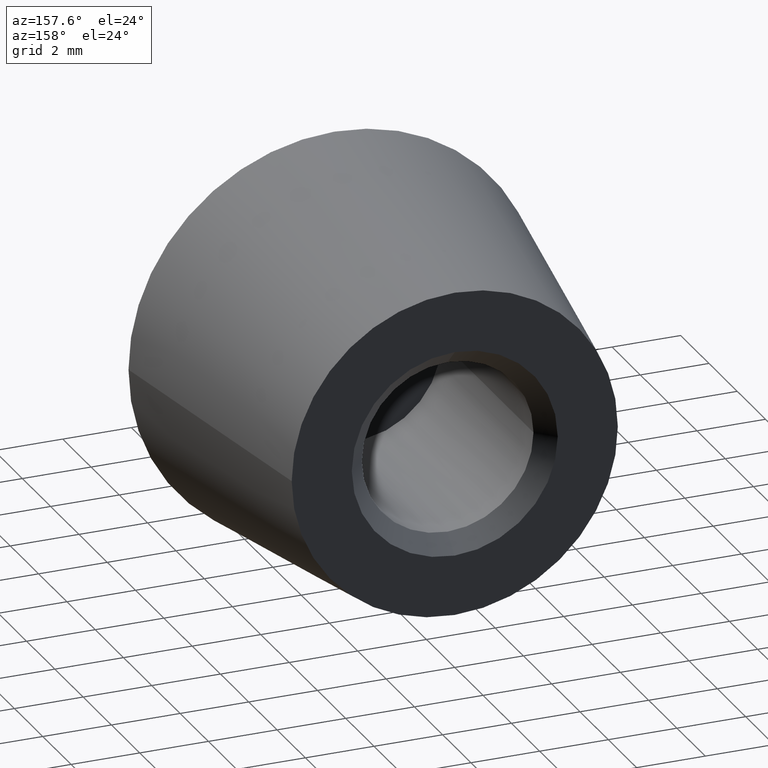
[diagram: clean part render]
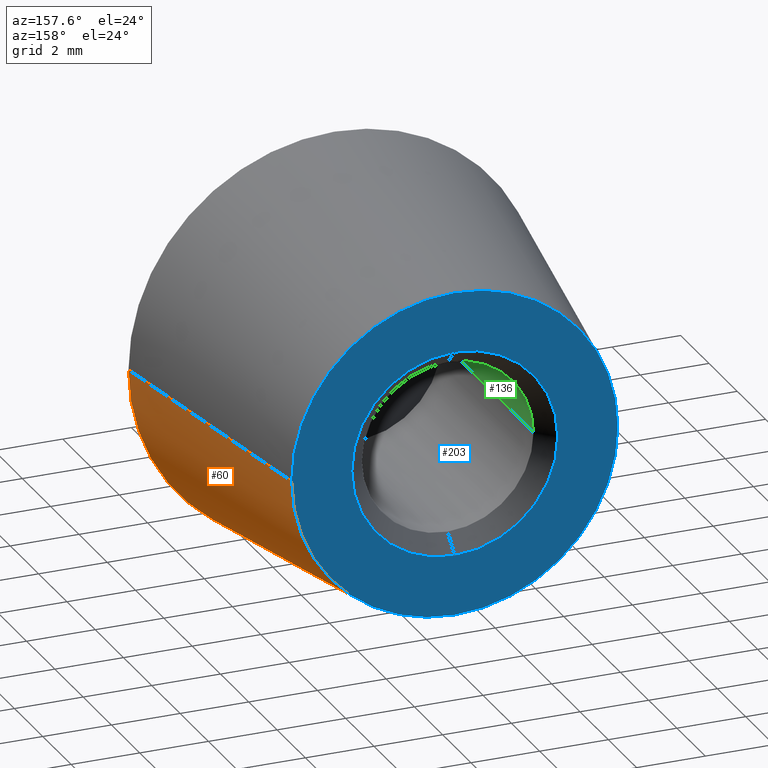
[diagram: same view with three faces highlighted in distinct colors, each labeled with its STEP entity id]
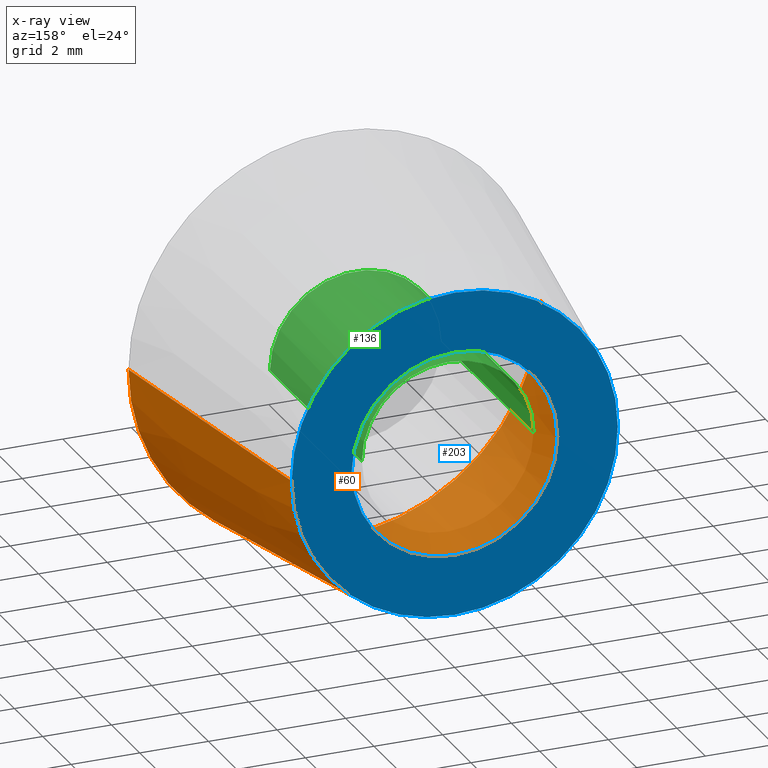
[diagram: x-ray of the same camera — body ghosted, the three highlighted faces saturated]
A machine part, auxiliary view with three faces highlighted in distinct colors.
The next image is the same camera in x-ray (body ghosted, the three faces saturated) — at least one of them is partly hidden behind the body in this view.
Their STEP definitions:

[orange] entity #60 — the highlighted conical surface has half-angle 8.366 deg.
#10 = DIRECTION ( 'NONE',  ( 3.491481338843133400E-015, -1.000000000000000000, -0.0000000000000000000 ) ) ;
#11 = AXIS2_PLACEMENT_3D ( 'NONE', #207, #10, #64 ) ;
#14 = VERTEX_POINT ( 'NONE', #219 ) ;
#26 = EDGE_CURVE ( 'NONE', #55, #56, #312, .T. ) ;
#28 = AXIS2_PLACEMENT_3D ( 'NONE', #180, #280, #37 ) ;
#32 = EDGE_CURVE ( 'NONE', #56, #14, #40, .T. ) ;
#36 = CARTESIAN_POINT ( 'NONE',  ( 2.967759138016635000E-014, -8.499999999999952000, 0.0000000000000000000 ) ) ;
#37 = DIRECTION ( 'NONE',  ( 1.000000000000000000, 3.469446951953631100E-015, 0.0000000000000000000 ) ) ;
#40 = CIRCLE ( 'NONE', #89, 5.999999999999970700 ) ;
#55 = VERTEX_POINT ( 'NONE', #173 ) ;
#56 = VERTEX_POINT ( 'NONE', #143 ) ;
#60 = ADVANCED_FACE ( 'NONE', ( #164 ), #160, .T. ) ;
#62 = ORIENTED_EDGE ( 'NONE', *, *, #32, .F. ) ;
#64 = DIRECTION ( 'NONE',  ( 1.000000000000000000, 3.491481338843132600E-015, 0.0000000000000000000 ) ) ;
#68 = DIRECTION ( 'NONE',  ( 0.1454939904948323600, -0.9893591353648530900, 0.0000000000000000000 ) ) ;
#82 = VECTOR ( 'NONE', #68, 1000.000000000000100 ) ;
#89 = AXIS2_PLACEMENT_3D ( 'NONE', #36, #251, #115 ) ;
#91 = CARTESIAN_POINT ( 'NONE',  ( 4.749999999999999100, 1.658453635950487700E-014, 0.0000000000000000000 ) ) ;
#115 = DIRECTION ( 'NONE',  ( 1.000000000000000000, 3.469446951953631100E-015, 0.0000000000000000000 ) ) ;
#119 = CARTESIAN_POINT ( 'NONE',  ( 6.000000000000000000, -8.499999999999930700, 0.0000000000000000000 ) ) ;
#124 = CARTESIAN_POINT ( 'NONE',  ( -5.999999999999941400, -8.499999999999973400, 7.347880794884083300E-016 ) ) ;
#129 = VECTOR ( 'NONE', #188, 1000.000000000000000 ) ;
#143 = CARTESIAN_POINT ( 'NONE',  ( -5.999999999999941400, -8.499999999999973400, 7.347880794884083300E-016 ) ) ;
#146 = EDGE_CURVE ( 'NONE', #55, #213, #232, .T. ) ;
#157 = LINE ( 'NONE', #119, #82 ) ;
#160 = CONICAL_SURFACE ( 'NONE', #28, 5.999999999999970700, 0.1460122577112729400 ) ;
#164 = FACE_OUTER_BOUND ( 'NONE', #287, .T. ) ;
#173 = CARTESIAN_POINT ( 'NONE',  ( -4.749999999999999100, -1.658453635950487700E-014, 6.582476545417005300E-016 ) ) ;
#180 = CARTESIAN_POINT ( 'NONE',  ( 2.967759138016635000E-014, -8.499999999999952000, 0.0000000000000000000 ) ) ;
#188 = DIRECTION ( 'NONE',  ( -0.1454939904948254800, -0.9893591353648540900, 1.781787497546676800E-017 ) ) ;
#197 = ORIENTED_EDGE ( 'NONE', *, *, #228, .T. ) ;
#207 = CARTESIAN_POINT ( 'NONE',  ( 0.0000000000000000000, 0.0000000000000000000, 0.0000000000000000000 ) ) ;
#213 = VERTEX_POINT ( 'NONE', #91 ) ;
#216 = ORIENTED_EDGE ( 'NONE', *, *, #146, .T. ) ;
#219 = CARTESIAN_POINT ( 'NONE',  ( 6.000000000000000000, -8.499999999999930700, 0.0000000000000000000 ) ) ;
#226 = ORIENTED_EDGE ( 'NONE', *, *, #26, .F. ) ;
#228 = EDGE_CURVE ( 'NONE', #213, #14, #157, .T. ) ;
#232 = CIRCLE ( 'NONE', #11, 4.749999999999999100 ) ;
#251 = DIRECTION ( 'NONE',  ( 3.491481338843133400E-015, -1.000000000000000000, -0.0000000000000000000 ) ) ;
#280 = DIRECTION ( 'NONE',  ( 3.491481338843133400E-015, -1.000000000000000000, -0.0000000000000000000 ) ) ;
#287 = EDGE_LOOP ( 'NONE', ( #226, #216, #197, #62 ) ) ;
#312 = LINE ( 'NONE', #124, #129 ) ;

[blue] entity #203 — the highlighted planar face has unit normal (-0, 1, 0).
#8 = DIRECTION ( 'NONE',  ( 0.0000000000000000000, 0.0000000000000000000, -1.000000000000000000 ) ) ;
#9 = FACE_BOUND ( 'NONE', #122, .T. ) ;
#10 = DIRECTION ( 'NONE',  ( 3.491481338843133400E-015, -1.000000000000000000, -0.0000000000000000000 ) ) ;
#11 = AXIS2_PLACEMENT_3D ( 'NONE', #207, #10, #64 ) ;
#12 = CARTESIAN_POINT ( 'NONE',  ( 2.895229960628836200E-029, -8.292268179752438600E-015, 0.0000000000000000000 ) ) ;
#29 = ORIENTED_EDGE ( 'NONE', *, *, #146, .F. ) ;
#39 = DIRECTION ( 'NONE',  ( 0.0000000000000000000, 0.0000000000000000000, -1.000000000000000000 ) ) ;
#46 = EDGE_CURVE ( 'NONE', #210, #274, #176, .T. ) ;
#50 = CIRCLE ( 'NONE', #66, 4.749999999999999100 ) ;
#55 = VERTEX_POINT ( 'NONE', #173 ) ;
#64 = DIRECTION ( 'NONE',  ( 1.000000000000000000, 3.491481338843132600E-015, 0.0000000000000000000 ) ) ;
#66 = AXIS2_PLACEMENT_3D ( 'NONE', #121, #259, #181 ) ;
#67 = DIRECTION ( 'NONE',  ( -1.000000000000000000, -3.491481338843133400E-015, 0.0000000000000000000 ) ) ;
#77 = CIRCLE ( 'NONE', #118, 3.000000000000000000 ) ;
#91 = CARTESIAN_POINT ( 'NONE',  ( 4.749999999999999100, 1.658453635950487700E-014, 0.0000000000000000000 ) ) ;
#117 = ORIENTED_EDGE ( 'NONE', *, *, #202, .T. ) ;
#118 = AXIS2_PLACEMENT_3D ( 'NONE', #167, #182, #39 ) ;
#121 = CARTESIAN_POINT ( 'NONE',  ( 0.0000000000000000000, 0.0000000000000000000, 0.0000000000000000000 ) ) ;
#122 = EDGE_LOOP ( 'NONE', ( #117, #269 ) ) ;
#133 = EDGE_CURVE ( 'NONE', #213, #55, #50, .T. ) ;
#141 = PLANE ( 'NONE',  #154 ) ;
#142 = EDGE_LOOP ( 'NONE', ( #218, #29 ) ) ;
#146 = EDGE_CURVE ( 'NONE', #55, #213, #232, .T. ) ;
#154 = AXIS2_PLACEMENT_3D ( 'NONE', #12, #208, #67 ) ;
#165 = CARTESIAN_POINT ( 'NONE',  ( 0.0000000000000000000, 0.0000000000000000000, 0.0000000000000000000 ) ) ;
#167 = CARTESIAN_POINT ( 'NONE',  ( 0.0000000000000000000, 0.0000000000000000000, 0.0000000000000000000 ) ) ;
#173 = CARTESIAN_POINT ( 'NONE',  ( -4.749999999999999100, -1.658453635950487700E-014, 6.582476545417005300E-016 ) ) ;
#176 = CIRCLE ( 'NONE', #311, 3.000000000000000000 ) ;
#181 = DIRECTION ( 'NONE',  ( 1.000000000000000000, 3.491481338843132600E-015, 0.0000000000000000000 ) ) ;
#182 = DIRECTION ( 'NONE',  ( -0.0000000000000000000, -1.000000000000000000, -0.0000000000000000000 ) ) ;
#199 = FACE_OUTER_BOUND ( 'NONE', #142, .T. ) ;
#202 = EDGE_CURVE ( 'NONE', #274, #210, #77, .T. ) ;
#203 = ADVANCED_FACE ( 'NONE', ( #9, #199 ), #141, .T. ) ;
#207 = CARTESIAN_POINT ( 'NONE',  ( 0.0000000000000000000, 0.0000000000000000000, 0.0000000000000000000 ) ) ;
#208 = DIRECTION ( 'NONE',  ( -3.491481338843133400E-015, 1.000000000000000000, 0.0000000000000000000 ) ) ;
#210 = VERTEX_POINT ( 'NONE', #256 ) ;
#213 = VERTEX_POINT ( 'NONE', #91 ) ;
#218 = ORIENTED_EDGE ( 'NONE', *, *, #133, .F. ) ;
#232 = CIRCLE ( 'NONE', #11, 4.749999999999999100 ) ;
#249 = CARTESIAN_POINT ( 'NONE',  ( 0.0000000000000000000, 1.084202172485504400E-016, 3.000000000000000000 ) ) ;
#256 = CARTESIAN_POINT ( 'NONE',  ( 3.673940397442059900E-016, 1.084202172485504400E-016, -3.000000000000000000 ) ) ;
#259 = DIRECTION ( 'NONE',  ( 3.491481338843133400E-015, -1.000000000000000000, -0.0000000000000000000 ) ) ;
#269 = ORIENTED_EDGE ( 'NONE', *, *, #46, .T. ) ;
#274 = VERTEX_POINT ( 'NONE', #249 ) ;
#304 = DIRECTION ( 'NONE',  ( -0.0000000000000000000, -1.000000000000000000, -0.0000000000000000000 ) ) ;
#311 = AXIS2_PLACEMENT_3D ( 'NONE', #165, #304, #8 ) ;

[green] entity #136 — the highlighted cylindrical surface (partial cylindrical patch) has radius 2.5 mm, axis along (-0, 1, -0).
#4 = CARTESIAN_POINT ( 'NONE',  ( 0.0000000000000000000, -0.5000000000000064400, 0.0000000000000000000 ) ) ;
#13 = DIRECTION ( 'NONE',  ( -1.000000000000000000, -3.469446951953613400E-015, 0.0000000000000000000 ) ) ;
#18 = CARTESIAN_POINT ( 'NONE',  ( 0.0000000000000000000, -0.5000000000000064400, 0.0000000000000000000 ) ) ;
#23 = VERTEX_POINT ( 'NONE', #74 ) ;
#34 = DIRECTION ( 'NONE',  ( 0.0000000000000000000, 0.0000000000000000000, 1.000000000000000000 ) ) ;
#35 = LINE ( 'NONE', #308, #248 ) ;
#43 = CARTESIAN_POINT ( 'NONE',  ( 2.500000000000000400, -0.5000000000000064400, 3.061616997868382600E-016 ) ) ;
#44 = ORIENTED_EDGE ( 'NONE', *, *, #209, .T. ) ;
#59 = CARTESIAN_POINT ( 'NONE',  ( 2.500000000000049300, -14.07106781186546000, 3.061616997868383600E-016 ) ) ;
#65 = CYLINDRICAL_SURFACE ( 'NONE', #238, 2.500000000000000400 ) ;
#70 = CARTESIAN_POINT ( 'NONE',  ( 4.912887068272456400E-014, -14.07106781186546800, 0.0000000000000000000 ) ) ;
#73 = AXIS2_PLACEMENT_3D ( 'NONE', #183, #286, #13 ) ;
#74 = CARTESIAN_POINT ( 'NONE',  ( 2.500000000000024900, -6.999999999999991100, 3.061616997868396900E-016 ) ) ;
#79 = ORIENTED_EDGE ( 'NONE', *, *, #275, .F. ) ;
#85 = ORIENTED_EDGE ( 'NONE', *, *, #260, .F. ) ;
#87 = DIRECTION ( 'NONE',  ( 0.0000000000000000000, 0.0000000000000000000, 1.000000000000000000 ) ) ;
#88 = ORIENTED_EDGE ( 'NONE', *, *, #246, .F. ) ;
#90 = CIRCLE ( 'NONE', #170, 2.500000000000000400 ) ;
#96 = DIRECTION ( 'NONE',  ( -1.000000000000000000, -3.469446951953613400E-015, 0.0000000000000000000 ) ) ;
#98 = VERTEX_POINT ( 'NONE', #285 ) ;
#103 = FACE_OUTER_BOUND ( 'NONE', #310, .T. ) ;
#109 = ORIENTED_EDGE ( 'NONE', *, *, #267, .T. ) ;
#128 = VERTEX_POINT ( 'NONE', #43 ) ;
#135 = VECTOR ( 'NONE', #278, 1000.000000000000000 ) ;
#136 = ADVANCED_FACE ( 'NONE', ( #103 ), #65, .F. ) ;
#150 = VERTEX_POINT ( 'NONE', #214 ) ;
#162 = DIRECTION ( 'NONE',  ( -0.0000000000000000000, -1.000000000000000000, -0.0000000000000000000 ) ) ;
#166 = CARTESIAN_POINT ( 'NONE',  ( -2.500000000000000000, -0.5000000000000064400, 0.0000000000000000000 ) ) ;
#170 = AXIS2_PLACEMENT_3D ( 'NONE', #18, #288, #87 ) ;
#183 = CARTESIAN_POINT ( 'NONE',  ( 2.444036937190193300E-014, -7.000000000000000000, 0.0000000000000000000 ) ) ;
#184 = DIRECTION ( 'NONE',  ( -3.491481338843133400E-015, 1.000000000000000000, -0.0000000000000000000 ) ) ;
#198 = VERTEX_POINT ( 'NONE', #166 ) ;
#206 = CIRCLE ( 'NONE', #299, 2.500000000000000400 ) ;
#209 = EDGE_CURVE ( 'NONE', #23, #150, #284, .T. ) ;
#214 = CARTESIAN_POINT ( 'NONE',  ( -2.499999999999976000, -7.000000000000008900, 0.0000000000000000000 ) ) ;
#238 = AXIS2_PLACEMENT_3D ( 'NONE', #70, #184, #96 ) ;
#246 = EDGE_CURVE ( 'NONE', #128, #98, #90, .T. ) ;
#248 = VECTOR ( 'NONE', #302, 1000.000000000000000 ) ;
#255 = LINE ( 'NONE', #59, #135 ) ;
#260 = EDGE_CURVE ( 'NONE', #98, #198, #206, .T. ) ;
#267 = EDGE_CURVE ( 'NONE', #150, #198, #35, .T. ) ;
#275 = EDGE_CURVE ( 'NONE', #23, #128, #255, .T. ) ;
#278 = DIRECTION ( 'NONE',  ( -3.491481338843133400E-015, 1.000000000000000000, -0.0000000000000000000 ) ) ;
#284 = CIRCLE ( 'NONE', #73, 2.500000000000000400 ) ;
#285 = CARTESIAN_POINT ( 'NONE',  ( 0.0000000000000000000, -0.5000000000000064400, 2.500000000000000400 ) ) ;
#286 = DIRECTION ( 'NONE',  ( 3.491481338843133400E-015, -1.000000000000000000, -0.0000000000000000000 ) ) ;
#288 = DIRECTION ( 'NONE',  ( -0.0000000000000000000, -1.000000000000000000, -0.0000000000000000000 ) ) ;
#299 = AXIS2_PLACEMENT_3D ( 'NONE', #4, #162, #34 ) ;
#302 = DIRECTION ( 'NONE',  ( -3.491481338843133400E-015, 1.000000000000000000, -0.0000000000000000000 ) ) ;
#308 = CARTESIAN_POINT ( 'NONE',  ( -2.499999999999951600, -14.07106781186547700, 0.0000000000000000000 ) ) ;
#310 = EDGE_LOOP ( 'NONE', ( #79, #44, #109, #85, #88 ) ) ;